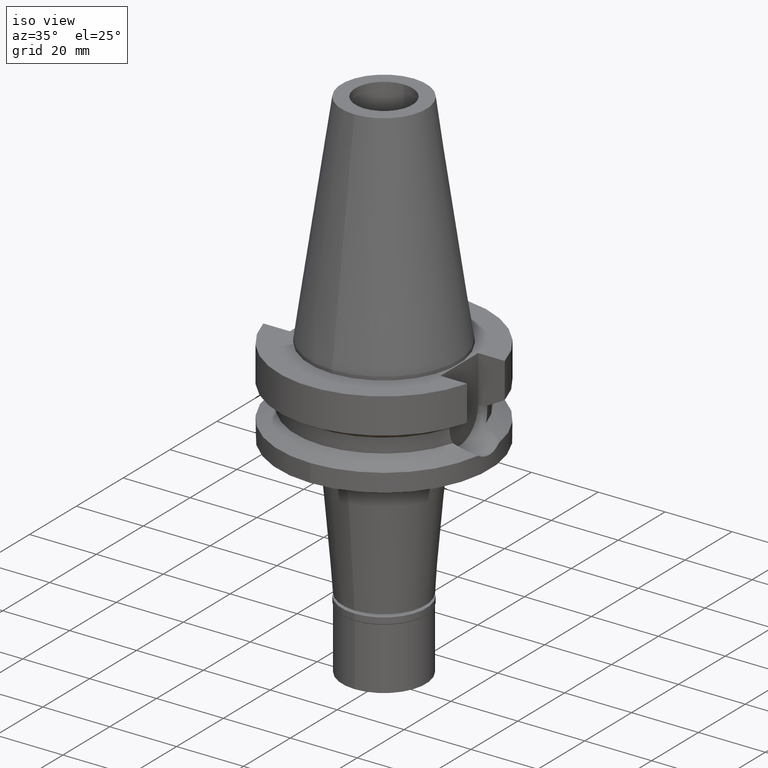
[diagram: clean part render]
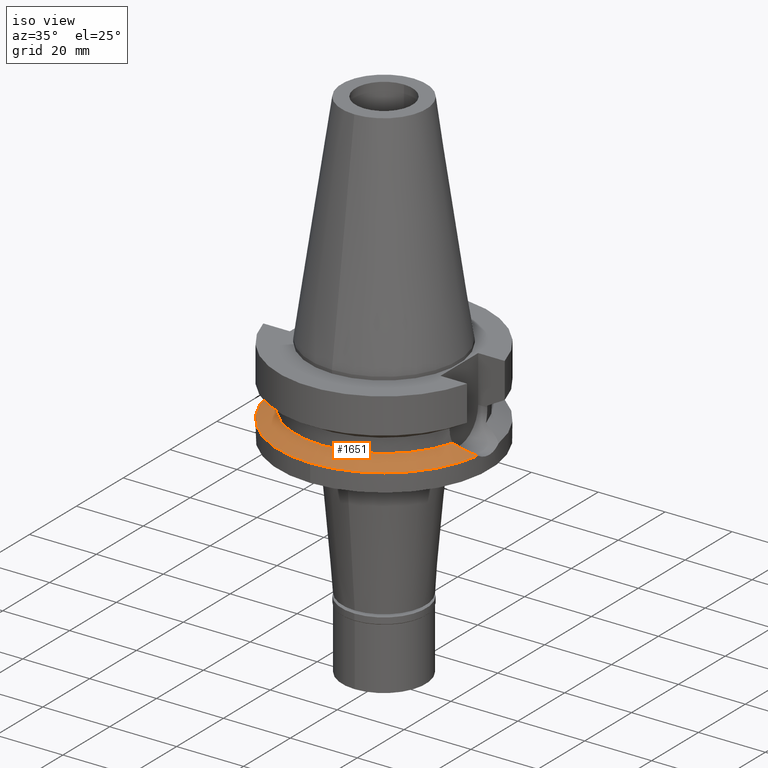
[diagram: same view with one face highlighted and labeled with its STEP entity id]
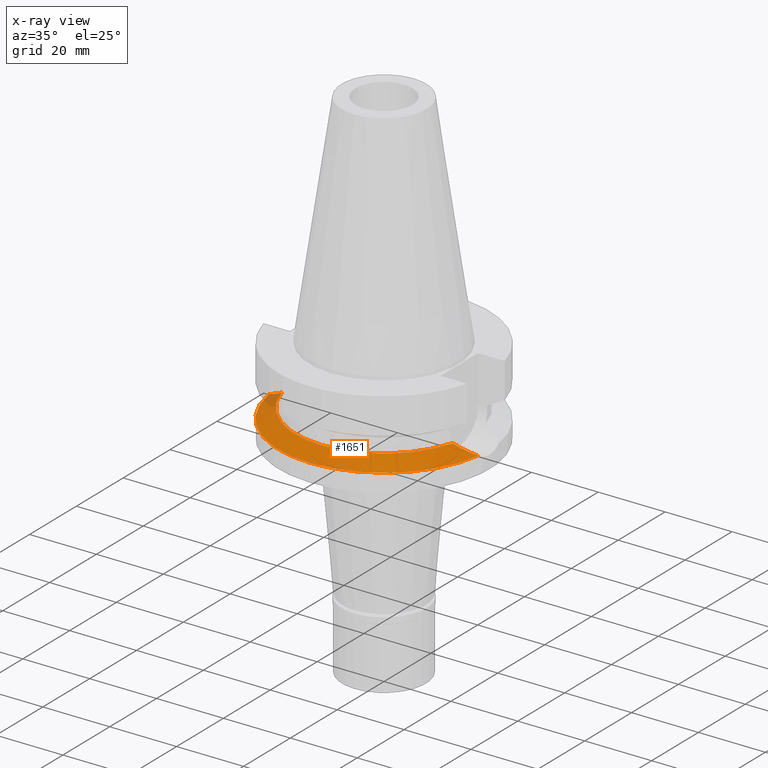
[diagram: x-ray of the same camera — body ghosted, the highlighted face saturated]
A machine part, iso view. The second image highlights one B-rep face of the part: STEP entity #1651.
The next image is the same camera in x-ray: the body ghosted, the highlighted face saturated — about 3% of this face is hidden behind the body in this view.
In plain terms, the highlighted conical surface has half-angle 60 deg.
Its self-contained STEP definition (entity closure, byte-faithful):
#48 = CARTESIAN_POINT ( 'NONE',  ( -29.39927465365454040, -5.606164246531918138, -20.72749830513384950 ) ) ;
#125 = DIRECTION ( 'NONE',  ( 0.0000000000000000000, 0.0000000000000000000, -1.000000000000000000 ) ) ;
#189 = CIRCLE ( 'NONE', #1811, 31.50000000000001421 ) ;
#198 = CARTESIAN_POINT ( 'NONE',  ( 27.39662383679578284, -6.496370903629683724, -19.70401017210301831 ) ) ;
#229 = CARTESIAN_POINT ( 'NONE',  ( 28.61813867488513452, -5.991531881228386425, -20.32864604726891855 ) ) ;
#271 = VERTEX_POINT ( 'NONE', #412 ) ;
#300 = CARTESIAN_POINT ( 'NONE',  ( -29.91717531547290321, -5.321970035366536678, -20.99173552883757665 ) ) ;
#350 = ORIENTED_EDGE ( 'NONE', *, *, #874, .F. ) ;
#412 = CARTESIAN_POINT ( 'NONE',  ( -31.17899877608999759, -4.485536235554000051, -21.63449434733000132 ) ) ;
#413 = CARTESIAN_POINT ( 'NONE',  ( 28.37596082934357256, -6.100523419499218392, -20.20491168055141529 ) ) ;
#426 = ORIENTED_EDGE ( 'NONE', *, *, #897, .T. ) ;
#457 = CARTESIAN_POINT ( 'NONE',  ( 0.0000000000000000000, -31.50000000000000000, -21.63449434733000132 ) ) ;
#464 = CARTESIAN_POINT ( 'NONE',  ( 31.17899877608999759, -4.485536235554000051, -21.63449434733000132 ) ) ;
#527 = DIRECTION ( 'NONE',  ( 0.0000000000000000000, -1.000000000000000000, 0.0000000000000000000 ) ) ;
#583 = CARTESIAN_POINT ( 'NONE',  ( -26.81162868382475750, -6.746046006687073771, -19.40527643865020835 ) ) ;
#660 = CARTESIAN_POINT ( 'NONE',  ( 30.86104049841693353, -4.726761211514427963, -21.47262370845691848 ) ) ;
#667 = DIRECTION ( 'NONE',  ( 0.0000000000000000000, 0.0000000000000000000, -1.000000000000000000 ) ) ;
#688 = EDGE_LOOP ( 'NONE', ( #1024, #3102, #426, #350, #703 ) ) ;
#703 = ORIENTED_EDGE ( 'NONE', *, *, #2086, .F. ) ;
#722 = CARTESIAN_POINT ( 'NONE',  ( 25.53175183775000079, -7.097862220092999941, -18.74774300138999905 ) ) ;
#745 = CONICAL_SURFACE ( 'NONE', #1002, 29.00000000000000000, 1.047197551196400456 ) ;
#767 = CARTESIAN_POINT ( 'NONE',  ( 0.0000000000000000000, 0.0000000000000000000, -20.19111867435999841 ) ) ;
#874 = EDGE_CURVE ( 'NONE', #2898, #909, #3043, .T. ) ;
#897 = EDGE_CURVE ( 'NONE', #2075, #909, #1309, .T. ) ;
#909 = VERTEX_POINT ( 'NONE', #722 ) ;
#960 = CARTESIAN_POINT ( 'NONE',  ( 26.79404231370643075, -6.719628638372985741, -19.39552253588362518 ) ) ;
#1002 = AXIS2_PLACEMENT_3D ( 'NONE', #767, #2972, #527 ) ;
#1024 = ORIENTED_EDGE ( 'NONE', *, *, #1386, .F. ) ;
#1030 = CARTESIAN_POINT ( 'NONE',  ( -29.07301181364941911, -5.772470296499502496, -20.56093948674907068 ) ) ;
#1103 = CARTESIAN_POINT ( 'NONE',  ( 0.0000000000000000000, 0.0000000000000000000, -21.63449434733000132 ) ) ;
#1109 = AXIS2_PLACEMENT_3D ( 'NONE', #1418, #2160, #2439 ) ;
#1164 = CARTESIAN_POINT ( 'NONE',  ( 30.50782579583353282, -4.966229002703479445, -21.29268815298398465 ) ) ;
#1169 = DIRECTION ( 'NONE',  ( 0.9898094849552905306, -0.1423979757318985240, 0.0000000000000000000 ) ) ;
#1178 = CARTESIAN_POINT ( 'NONE',  ( 25.53175183775000079, -7.097862220092999941, -18.74774300138999905 ) ) ;
#1211 = CARTESIAN_POINT ( 'NONE',  ( 27.80121879646687333, -6.340637125294692034, -19.91105099536894940 ) ) ;
#1275 = CARTESIAN_POINT ( 'NONE',  ( 0.0000000000000000000, 0.0000000000000000000, -21.63449434733000132 ) ) ;
#1309 = B_SPLINE_CURVE_WITH_KNOTS ( 'NONE', 3,
 ( #464, #660, #1164, #1870, #1445, #2418, #2614, #229, #413, #1398, #1211, #2390, #3109, #198, #2431, #960, #1933, #1178 ),
 .UNSPECIFIED., .F., .F.,
 ( 4, 2, 2, 2, 2, 1, 1, 2, 2, 4 ),
 ( 0.0000000000000000000, 0.2500000000000018874, 0.3750000000000029421, 0.5000000000000039968, 0.6250000000000051070, 0.6875000000000047740, 0.7187500000000043299, 0.7343750000000041078, 0.7500000000000038858, 1.000000000000000000 ),
 .UNSPECIFIED. ) ;
#1386 = EDGE_CURVE ( 'NONE', #1892, #271, #2434, .T. ) ;
#1398 = CARTESIAN_POINT ( 'NONE',  ( 27.99564109677500667, -6.261087295857806545, -20.01047678186483125 ) ) ;
#1418 = CARTESIAN_POINT ( 'NONE',  ( 0.0000000000000000000, 0.0000000000000000000, -18.74774300138999905 ) ) ;
#1445 = CARTESIAN_POINT ( 'NONE',  ( 29.72220131234393392, -5.432762588331338627, -20.89217097969475390 ) ) ;
#1651 = ADVANCED_FACE ( 'NONE', ( #2958 ), #745, .T. ) ;
#1787 = CARTESIAN_POINT ( 'NONE',  ( -28.96172118676631513, -5.827167448893048274, -20.50411331991797326 ) ) ;
#1811 = AXIS2_PLACEMENT_3D ( 'NONE', #1103, #667, #1169 ) ;
#1870 = CARTESIAN_POINT ( 'NONE',  ( 29.92520441247708973, -5.317166759708236157, -20.99568744487900673 ) ) ;
#1892 = VERTEX_POINT ( 'NONE', #457 ) ;
#1933 = CARTESIAN_POINT ( 'NONE',  ( 26.19506720107400000, -6.915528193084413466, -19.08851956295660202 ) ) ;
#2006 = CARTESIAN_POINT ( 'NONE',  ( -25.53175183775000079, -7.097862220092999941, -18.74774300138999905 ) ) ;
#2049 = CARTESIAN_POINT ( 'NONE',  ( -30.49969782155681841, -4.971653325591544714, -21.28868253197503080 ) ) ;
#2075 = VERTEX_POINT ( 'NONE', #2762 ) ;
#2086 = EDGE_CURVE ( 'NONE', #271, #2898, #2133, .T. ) ;
#2133 = B_SPLINE_CURVE_WITH_KNOTS ( 'NONE', 3,
 ( #2496, #2521, #2049, #300, #2238, #48, #2250, #1030, #1787, #3031, #2719, #583, #2006 ),
 .UNSPECIFIED., .F., .F.,
 ( 4, 2, 2, 1, 2, 2, 4 ),
 ( 0.0000000000000000000, 0.2499999999999985012, 0.3749999999999987788, 0.4374999999999997224, 0.4687500000000001665, 0.5000000000000006661, 1.000000000000000000 ),
 .UNSPECIFIED. ) ;
#2145 = CARTESIAN_POINT ( 'NONE',  ( -25.53175183775000079, -7.097862220092999941, -18.74774300138999905 ) ) ;
#2160 = DIRECTION ( 'NONE',  ( 0.0000000000000000000, 0.0000000000000000000, 1.000000000000000000 ) ) ;
#2229 = EDGE_CURVE ( 'NONE', #2075, #1892, #189, .T. ) ;
#2238 = CARTESIAN_POINT ( 'NONE',  ( -29.71488483675782533, -5.436937176643835912, -20.88855799305669692 ) ) ;
#2250 = CARTESIAN_POINT ( 'NONE',  ( -29.23842594584521493, -5.689971573349668077, -20.64539571238823967 ) ) ;
#2275 = AXIS2_PLACEMENT_3D ( 'NONE', #1275, #125, #3055 ) ;
#2390 = CARTESIAN_POINT ( 'NONE',  ( 27.56695703945560894, -6.431885789768045036, -19.79118965444006761 ) ) ;
#2418 = CARTESIAN_POINT ( 'NONE',  ( 29.29866996305804250, -5.660177657830621989, -20.67610559102771361 ) ) ;
#2431 = CARTESIAN_POINT ( 'NONE',  ( 27.36110611455410790, -6.509633116806850417, -19.68582875668418453 ) ) ;
#2434 = CIRCLE ( 'NONE', #2275, 31.50000000000000000 ) ;
#2439 = DIRECTION ( 'NONE',  ( -0.9634623335000935818, -0.2678438573619981722, 0.0000000000000000000 ) ) ;
#2496 = CARTESIAN_POINT ( 'NONE',  ( -31.17899877608999759, -4.485536235554000051, -21.63449434733000132 ) ) ;
#2521 = CARTESIAN_POINT ( 'NONE',  ( -30.85558091886429466, -4.730903223341676345, -21.46984426947520674 ) ) ;
#2614 = CARTESIAN_POINT ( 'NONE',  ( 29.07966958532826141, -5.771267610083500976, -20.56433698255683495 ) ) ;
#2719 = CARTESIAN_POINT ( 'NONE',  ( -27.91734765515953498, -6.325994505015095193, -19.97078314652612008 ) ) ;
#2762 = CARTESIAN_POINT ( 'NONE',  ( 31.17899877608999759, -4.485536235554000051, -21.63449434733000132 ) ) ;
#2898 = VERTEX_POINT ( 'NONE', #2145 ) ;
#2958 = FACE_OUTER_BOUND ( 'NONE', #688, .T. ) ;
#2972 = DIRECTION ( 'NONE',  ( 0.0000000000000000000, 0.0000000000000000000, -1.000000000000000000 ) ) ;
#3031 = CARTESIAN_POINT ( 'NONE',  ( -28.90713132029155830, -5.853619226246349783, -20.47623724485930197 ) ) ;
#3043 = CIRCLE ( 'NONE', #1109, 26.49999999999998224 ) ;
#3055 = DIRECTION ( 'NONE',  ( 0.0000000000000000000, -1.000000000000000000, 0.0000000000000000000 ) ) ;
#3102 = ORIENTED_EDGE ( 'NONE', *, *, #2229, .F. ) ;
#3109 = CARTESIAN_POINT ( 'NONE',  ( 27.46496892510697307, -6.470627554053011821, -19.73899238189546779 ) ) ;